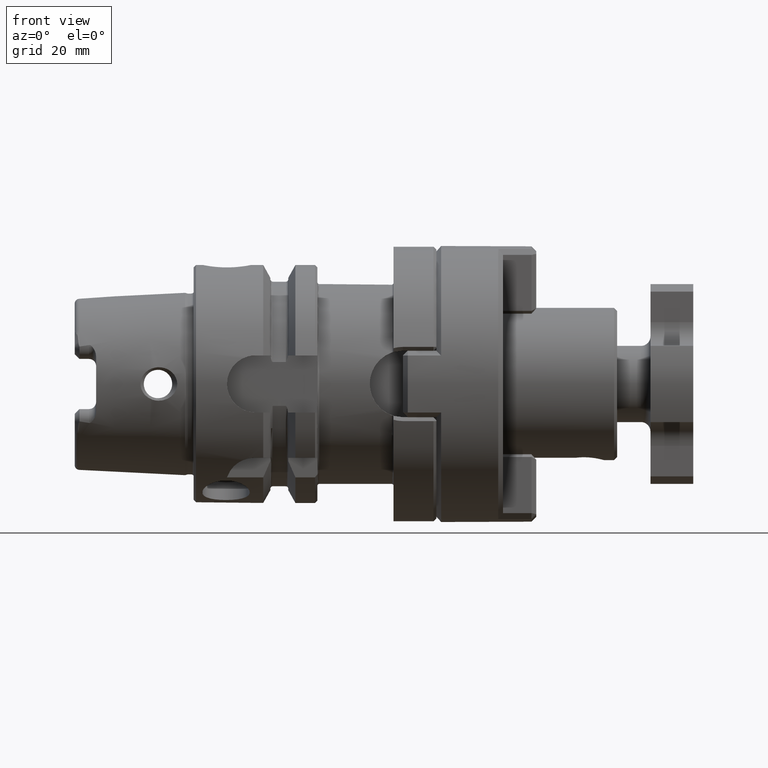
[diagram: clean part render]
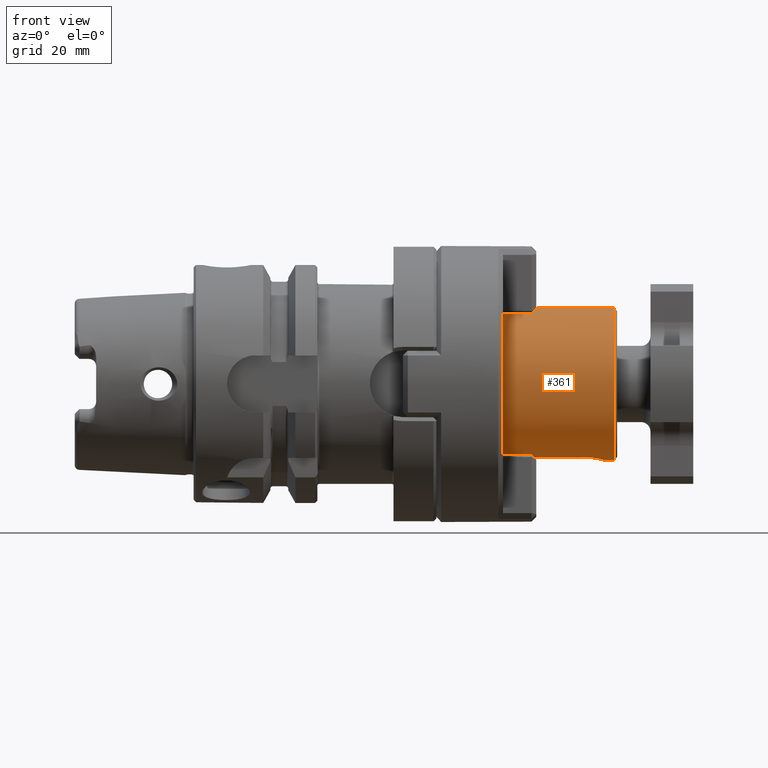
[diagram: same view with one face highlighted and labeled with its STEP entity id]
A machine part, front view. The second image highlights one B-rep face of the part: STEP entity #361.
In plain terms, the highlighted cylindrical surface (bore or boss wall) has radius 16 mm, axis along (1, -0, -0).
Its self-contained STEP definition (entity closure, byte-faithful):
#361 = ADVANCED_FACE( '', ( #782, #783 ), #784, .T. );
#782 = FACE_OUTER_BOUND( '', #1344, .T. );
#783 = FACE_OUTER_BOUND( '', #1345, .T. );
#784 = CYLINDRICAL_SURFACE( '', #1346, 16.0000000000000 );
#1344 = EDGE_LOOP( '', ( #2541 ) );
#1345 = EDGE_LOOP( '', ( #2542, #2543, #2544, #2545, #2546, #2547, #2548, #2549, #2550, #2551, #2552, #2553 ) );
#1346 = AXIS2_PLACEMENT_3D( '', #2554, #2555, #2556 );
#2541 = ORIENTED_EDGE( '', *, *, #3727, .T. );
#2542 = ORIENTED_EDGE( '', *, *, #3711, .T. );
#2543 = ORIENTED_EDGE( '', *, *, #3728, .T. );
#2544 = ORIENTED_EDGE( '', *, *, #3517, .F. );
#2545 = ORIENTED_EDGE( '', *, *, #3690, .T. );
#2546 = ORIENTED_EDGE( '', *, *, #3524, .F. );
#2547 = ORIENTED_EDGE( '', *, *, #3729, .T. );
#2548 = ORIENTED_EDGE( '', *, *, #3730, .T. );
#2549 = ORIENTED_EDGE( '', *, *, #3644, .T. );
#2550 = ORIENTED_EDGE( '', *, *, #3731, .T. );
#2551 = ORIENTED_EDGE( '', *, *, #3714, .T. );
#2552 = ORIENTED_EDGE( '', *, *, #3732, .T. );
#2553 = ORIENTED_EDGE( '', *, *, #3718, .T. );
#2554 = CARTESIAN_POINT( '', ( 5.00000000000000, 0.000000000000000, 0.000000000000000 ) );
#2555 = DIRECTION( '', ( 1.00000000000000, -0.000000000000000, -0.000000000000000 ) );
#2556 = DIRECTION( '', ( 0.000000000000000, 0.000000000000000, 1.00000000000000 ) );
#3517 = EDGE_CURVE( '', #4480, #4482, #4483, .T. );
#3524 = EDGE_CURVE( '', #4491, #4493, #4494, .F. );
#3644 = EDGE_CURVE( '', #4660, #4658, #4661, .T. );
#3690 = EDGE_CURVE( '', #4480, #4493, #4730, .T. );
#3711 = EDGE_CURVE( '', #4755, #4247, #4756, .F. );
#3714 = EDGE_CURVE( '', #4759, #4741, #4760, .T. );
#3718 = EDGE_CURVE( '', #4764, #4755, #4765, .T. );
#3727 = EDGE_CURVE( '', #4778, #4778, #4779, .T. );
#3728 = EDGE_CURVE( '', #4247, #4482, #4780, .T. );
#3729 = EDGE_CURVE( '', #4491, #4380, #4781, .T. );
#3730 = EDGE_CURVE( '', #4380, #4660, #4782, .T. );
#3731 = EDGE_CURVE( '', #4658, #4759, #4783, .F. );
#3732 = EDGE_CURVE( '', #4741, #4764, #4784, .T. );
#4247 = VERTEX_POINT( '', #6151 );
#4380 = VERTEX_POINT( '', #6379 );
#4480 = VERTEX_POINT( '', #6536 );
#4482 = VERTEX_POINT( '', #6540 );
#4483 = LINE( '', #6541, #6542 );
#4491 = VERTEX_POINT( '', #6556 );
#4493 = VERTEX_POINT( '', #6559 );
#4494 = LINE( '', #6560, #6561 );
#4658 = VERTEX_POINT( '', #6867 );
#4660 = VERTEX_POINT( '', #6872 );
#4661 = CIRCLE( '', #6873, 16.0000000000000 );
#4730 = B_SPLINE_CURVE_WITH_KNOTS( '', 3, ( #7046, #7047, #7048, #7049, #7050, #7051, #7052, #7053, #7054, #7055, #7056, #7057, #7058, #7059, #7060, #7061, #7062, #7063, #7064, #7065, #7066, #7067, #7068, #7069, #7070, #7071, #7072, #7073, #7074, #7075, #7076, #7077, #7078, #7079, #7080, #7081, #7082, #7083, #7084, #7085, #7086, #7087, #7088, #7089, #7090, #7091 ), .UNSPECIFIED., .F., .F., ( 4, 2, 2, 2, 2, 2, 2, 2, 2, 2, 2, 2, 2, 2, 2, 2, 2, 2, 2, 2, 2, 2, 4 ), ( 0.000424771084658041, 0.000957208229362613, 0.00148964537406718, 0.00255451966347629, 0.00361939395288539, 0.00415183109758992, 0.00468426824229445, 0.00574914253170355, 0.00681401682111265, 0.00787889111052175, 0.00841132825522631, 0.00894376539993086, 0.00947620254463542, 0.0100086396893400, 0.0110735139787491, 0.0121383882681582, 0.0132032625575673, 0.0137356997022718, 0.0142681368469764, 0.0153330111363854, 0.0158654482810900, 0.0163978854257945, 0.0174627597152036 ), .UNSPECIFIED. );
#4741 = VERTEX_POINT( '', #7134 );
#4755 = VERTEX_POINT( '', #7156 );
#4756 = LINE( '', #7157, #7158 );
#4759 = VERTEX_POINT( '', #7164 );
#4760 = CIRCLE( '', #7165, 16.0000000000000 );
#4764 = VERTEX_POINT( '', #7169 );
#4765 = CIRCLE( '', #7170, 16.0000000000000 );
#4778 = VERTEX_POINT( '', #7192 );
#4779 = CIRCLE( '', #7193, 16.0000000000000 );
#4780 = CIRCLE( '', #7194, 16.0000000000000 );
#4781 = CIRCLE( '', #7195, 16.0000000000000 );
#4782 = LINE( '', #7196, #7197 );
#4783 = LINE( '', #7198, #7199 );
#4784 = LINE( '', #7200, #7201 );
#6151 = CARTESIAN_POINT( '', ( 71.0000000000000, -6.13461507029473, -14.7772290345421 ) );
#6379 = CARTESIAN_POINT( '', ( 71.0000000000000, 6.13461507029475, -14.7772290345420 ) );
#6536 = CARTESIAN_POINT( '', ( 80.3098735201695, -3.99974668041523, -15.4919979828087 ) );
#6540 = CARTESIAN_POINT( '', ( 71.0000000000000, -4.00000000000000, -15.4919333848297 ) );
#6541 = CARTESIAN_POINT( '', ( 5.00000000000000, -4.00000000000000, -15.4919333848297 ) );
#6542 = VECTOR( '', #7908, 1000.00000000000 );
#6556 = CARTESIAN_POINT( '', ( 71.0000000000000, 4.00000000000000, -15.4919333848297 ) );
#6559 = CARTESIAN_POINT( '', ( 80.3077526740600, 3.99995890384271, -15.4919434200230 ) );
#6560 = CARTESIAN_POINT( '', ( 5.00000000000000, 4.00000000000000, -15.4919333848297 ) );
#6561 = VECTOR( '', #7912, 1000.00000000000 );
#6867 = CARTESIAN_POINT( '', ( 64.0000000000000, 6.13461507029475, 14.7772290345420 ) );
#6872 = CARTESIAN_POINT( '', ( 64.0000000000000, 6.13461507029475, -14.7772290345420 ) );
#6873 = AXIS2_PLACEMENT_3D( '', #8040, #8041, #8042 );
#7046 = CARTESIAN_POINT( '', ( 80.3087323964362, -3.99949280886271, -15.4920643321623 ) );
#7047 = CARTESIAN_POINT( '', ( 80.4702755392451, -4.07129020700780, -15.4735288309263 ) );
#7048 = CARTESIAN_POINT( '', ( 80.6358860221025, -4.13296185529674, -15.4570842959324 ) );
#7049 = CARTESIAN_POINT( '', ( 80.9754917219173, -4.23562973807565, -15.4292666498064 ) );
#7050 = CARTESIAN_POINT( '', ( 81.1508122798594, -4.27679947527639, -15.4178438932419 ) );
#7051 = CARTESIAN_POINT( '', ( 81.6786033371023, -4.36463018562266, -15.3933004782974 ) );
#7052 = CARTESIAN_POINT( '', ( 82.0328967415416, -4.37579900439399, -15.3900501303529 ) );
#7053 = CARTESIAN_POINT( '', ( 82.7461472228635, -4.30747127680581, -15.4093137790468 ) );
#7054 = CARTESIAN_POINT( '', ( 83.0935036280539, -4.22905044239892, -15.4314873160119 ) );
#7055 = CARTESIAN_POINT( '', ( 83.5930347978290, -4.04758441120653, -15.4796956540271 ) );
#7056 = CARTESIAN_POINT( '', ( 83.7574005369142, -3.97542218957422, -15.4984877898717 ) );
#7057 = CARTESIAN_POINT( '', ( 84.0719994367648, -3.81190374088869, -15.5395139958867 ) );
#7058 = CARTESIAN_POINT( '', ( 84.2228045623917, -3.72087571761403, -15.5616708240180 ) );
#7059 = CARTESIAN_POINT( '', ( 84.6568520116170, -3.42122999469628, -15.6312905765161 ) );
#7060 = CARTESIAN_POINT( '', ( 84.9247250084673, -3.18278599394990, -15.6825368192641 ) );
#7061 = CARTESIAN_POINT( '', ( 85.3895298723363, -2.65481337702986, -15.7804959904308 ) );
#7062 = CARTESIAN_POINT( '', ( 85.5890066637760, -2.36371324825433, -15.8276528728285 ) );
#7063 = CARTESIAN_POINT( '', ( 85.9164393106156, -1.73103651860918, -15.9092818302390 ) );
#7064 = CARTESIAN_POINT( '', ( 86.0395414427573, -1.40047580652271, -15.9423305620355 ) );
#7065 = CARTESIAN_POINT( '', ( 86.1652883753887, -0.883645986184499, -15.9765133502140 ) );
#7066 = CARTESIAN_POINT( '', ( 86.1973674584508, -0.706546954530762, -15.9853753723658 ) );
#7067 = CARTESIAN_POINT( '', ( 86.2396970928946, -0.352146122038251, -15.9971068479000 ) );
#7068 = CARTESIAN_POINT( '', ( 86.2501148221733, -0.175051464836513, -16.0000213363066 ) );
#7069 = CARTESIAN_POINT( '', ( 86.2498841529924, 0.178930326498256, -15.9999784286064 ) );
#7070 = CARTESIAN_POINT( '', ( 86.2392883503667, 0.355817941991910, -15.9970209844844 ) );
#7071 = CARTESIAN_POINT( '', ( 86.1967725659191, 0.709383314925009, -15.9852451372628 ) );
#7072 = CARTESIAN_POINT( '', ( 86.1645461841344, 0.886779484321193, -15.9763429171732 ) );
#7073 = CARTESIAN_POINT( '', ( 86.0381394506395, 1.40448372093493, -15.9419907452403 ) );
#7074 = CARTESIAN_POINT( '', ( 85.9145563300253, 1.73492815919606, -15.9088456304106 ) );
#7075 = CARTESIAN_POINT( '', ( 85.5872383901392, 2.36637181741433, -15.8272432669607 ) );
#7076 = CARTESIAN_POINT( '', ( 85.3871695315185, 2.65837536258874, -15.7798883094333 ) );
#7077 = CARTESIAN_POINT( '', ( 84.9228605902810, 3.18540093848263, -15.6819978155757 ) );
#7078 = CARTESIAN_POINT( '', ( 84.6544779505417, 3.42395904040555, -15.6306845060182 ) );
#7079 = CARTESIAN_POINT( '', ( 84.2206814738243, 3.72264596776173, -15.5612453038942 ) );
#7080 = CARTESIAN_POINT( '', ( 84.0702355383684, 3.81314417460532, -15.5392062249538 ) );
#7081 = CARTESIAN_POINT( '', ( 83.7571145580973, 3.97542788145753, -15.4984828856665 ) );
#7082 = CARTESIAN_POINT( '', ( 83.5929794313586, 4.04739153569203, -15.4797467587623 ) );
#7083 = CARTESIAN_POINT( '', ( 83.0909016084940, 4.22934001395690, -15.4314106575114 ) );
#7084 = CARTESIAN_POINT( '', ( 82.7460973665221, 4.30674284309115, -15.4095175681932 ) );
#7085 = CARTESIAN_POINT( '', ( 82.2138316941829, 4.35810421393797, -15.3950395926967 ) );
#7086 = CARTESIAN_POINT( '', ( 82.0332149894233, 4.36402891942188, -15.3933520511702 ) );
#7087 = CARTESIAN_POINT( '', ( 81.6777369004812, 4.35251788638434, -15.3966107903499 ) );
#7088 = CARTESIAN_POINT( '', ( 81.5015806892221, 4.33512268610411, -15.4015456976551 ) );
#7089 = CARTESIAN_POINT( '', ( 80.9777802037766, 4.24851199128603, -15.4257492583678 ) );
#7090 = CARTESIAN_POINT( '', ( 80.6316099476975, 4.14417529252249, -15.4547082991586 ) );
#7091 = CARTESIAN_POINT( '', ( 80.3070987969736, 3.99991794451893, -15.4919545712320 ) );
#7134 = CARTESIAN_POINT( '', ( 71.0000000000000, -6.13461507029479, 14.7772290345421 ) );
#7156 = CARTESIAN_POINT( '', ( 64.0000000000000, -6.13461507029473, -14.7772290345421 ) );
#7157 = CARTESIAN_POINT( '', ( 5.00000000000000, -6.13461507029473, -14.7772290345421 ) );
#7158 = VECTOR( '', #8078, 1000.00000000000 );
#7164 = CARTESIAN_POINT( '', ( 71.0000000000000, 6.13461507029475, 14.7772290345420 ) );
#7165 = AXIS2_PLACEMENT_3D( '', #8079, #8080, #8081 );
#7169 = CARTESIAN_POINT( '', ( 64.0000000000000, -6.13461507029473, 14.7772290345421 ) );
#7170 = AXIS2_PLACEMENT_3D( '', #8088, #8089, #8090 );
#7192 = CARTESIAN_POINT( '', ( 88.3500000000000, 0.000000000000000, 16.0000000000000 ) );
#7193 = AXIS2_PLACEMENT_3D( '', #8097, #8098, #8099 );
#7194 = AXIS2_PLACEMENT_3D( '', #8100, #8101, #8102 );
#7195 = AXIS2_PLACEMENT_3D( '', #8103, #8104, #8105 );
#7196 = CARTESIAN_POINT( '', ( 5.00000000000000, 6.13461507029475, -14.7772290345420 ) );
#7197 = VECTOR( '', #8106, 1000.00000000000 );
#7198 = CARTESIAN_POINT( '', ( 5.00000000000000, 6.13461507029475, 14.7772290345420 ) );
#7199 = VECTOR( '', #8107, 1000.00000000000 );
#7200 = CARTESIAN_POINT( '', ( 5.00000000000000, -6.13461507029473, 14.7772290345421 ) );
#7201 = VECTOR( '', #8108, 1000.00000000000 );
#7908 = DIRECTION( '', ( -1.00000000000000, 0.000000000000000, 0.000000000000000 ) );
#7912 = DIRECTION( '', ( -1.00000000000000, 0.000000000000000, 0.000000000000000 ) );
#8040 = CARTESIAN_POINT( '', ( 64.0000000000000, 0.000000000000000, 0.000000000000000 ) );
#8041 = DIRECTION( '', ( 1.00000000000000, 0.000000000000000, 0.000000000000000 ) );
#8042 = DIRECTION( '', ( 0.000000000000000, 0.000000000000000, -1.00000000000000 ) );
#8078 = DIRECTION( '', ( -1.00000000000000, 0.000000000000000, 0.000000000000000 ) );
#8079 = CARTESIAN_POINT( '', ( 71.0000000000000, 0.000000000000000, 0.000000000000000 ) );
#8080 = DIRECTION( '', ( 1.00000000000000, 0.000000000000000, 0.000000000000000 ) );
#8081 = DIRECTION( '', ( 0.000000000000000, 0.000000000000000, -1.00000000000000 ) );
#8088 = CARTESIAN_POINT( '', ( 64.0000000000000, 0.000000000000000, 0.000000000000000 ) );
#8089 = DIRECTION( '', ( 1.00000000000000, 0.000000000000000, 0.000000000000000 ) );
#8090 = DIRECTION( '', ( 0.000000000000000, 0.000000000000000, -1.00000000000000 ) );
#8097 = CARTESIAN_POINT( '', ( 88.3500000000000, 0.000000000000000, 1.92592994438724E-031 ) );
#8098 = DIRECTION( '', ( -1.00000000000000, 0.000000000000000, 0.000000000000000 ) );
#8099 = DIRECTION( '', ( 0.000000000000000, 0.000000000000000, 1.00000000000000 ) );
#8100 = CARTESIAN_POINT( '', ( 71.0000000000000, 0.000000000000000, 0.000000000000000 ) );
#8101 = DIRECTION( '', ( 1.00000000000000, 0.000000000000000, 0.000000000000000 ) );
#8102 = DIRECTION( '', ( 0.000000000000000, 0.000000000000000, -1.00000000000000 ) );
#8103 = CARTESIAN_POINT( '', ( 71.0000000000000, 0.000000000000000, 0.000000000000000 ) );
#8104 = DIRECTION( '', ( 1.00000000000000, 0.000000000000000, 0.000000000000000 ) );
#8105 = DIRECTION( '', ( 0.000000000000000, 0.000000000000000, -1.00000000000000 ) );
#8106 = DIRECTION( '', ( -1.00000000000000, 0.000000000000000, 0.000000000000000 ) );
#8107 = DIRECTION( '', ( -1.00000000000000, 0.000000000000000, 0.000000000000000 ) );
#8108 = DIRECTION( '', ( -1.00000000000000, 0.000000000000000, 0.000000000000000 ) );